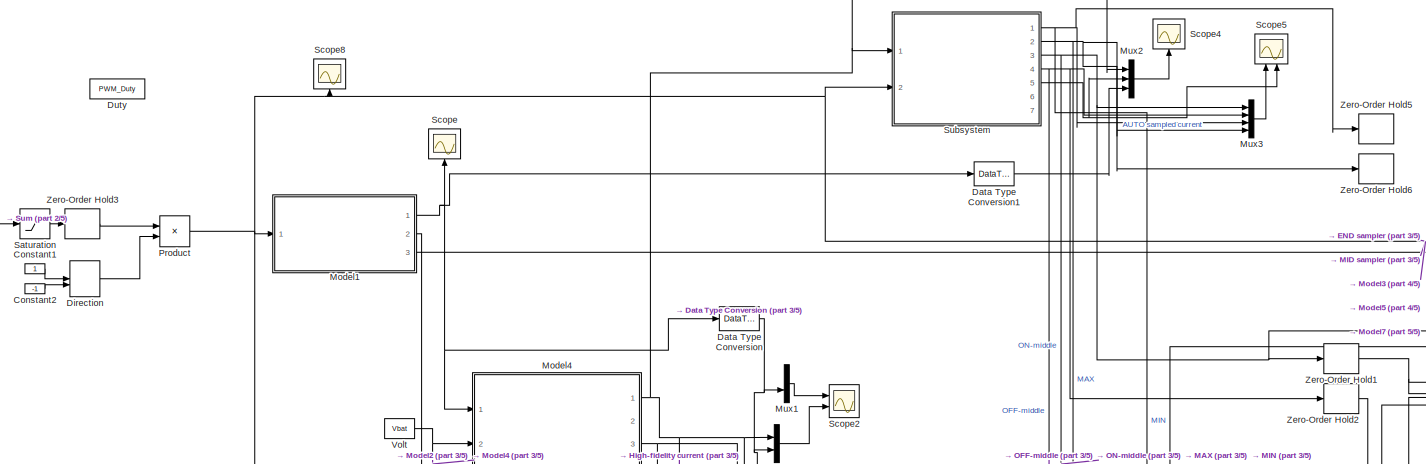
[diagram: root canvas - part 1/5, top center region]
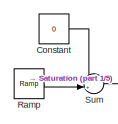
[diagram: root canvas - part 2/5, top left region]
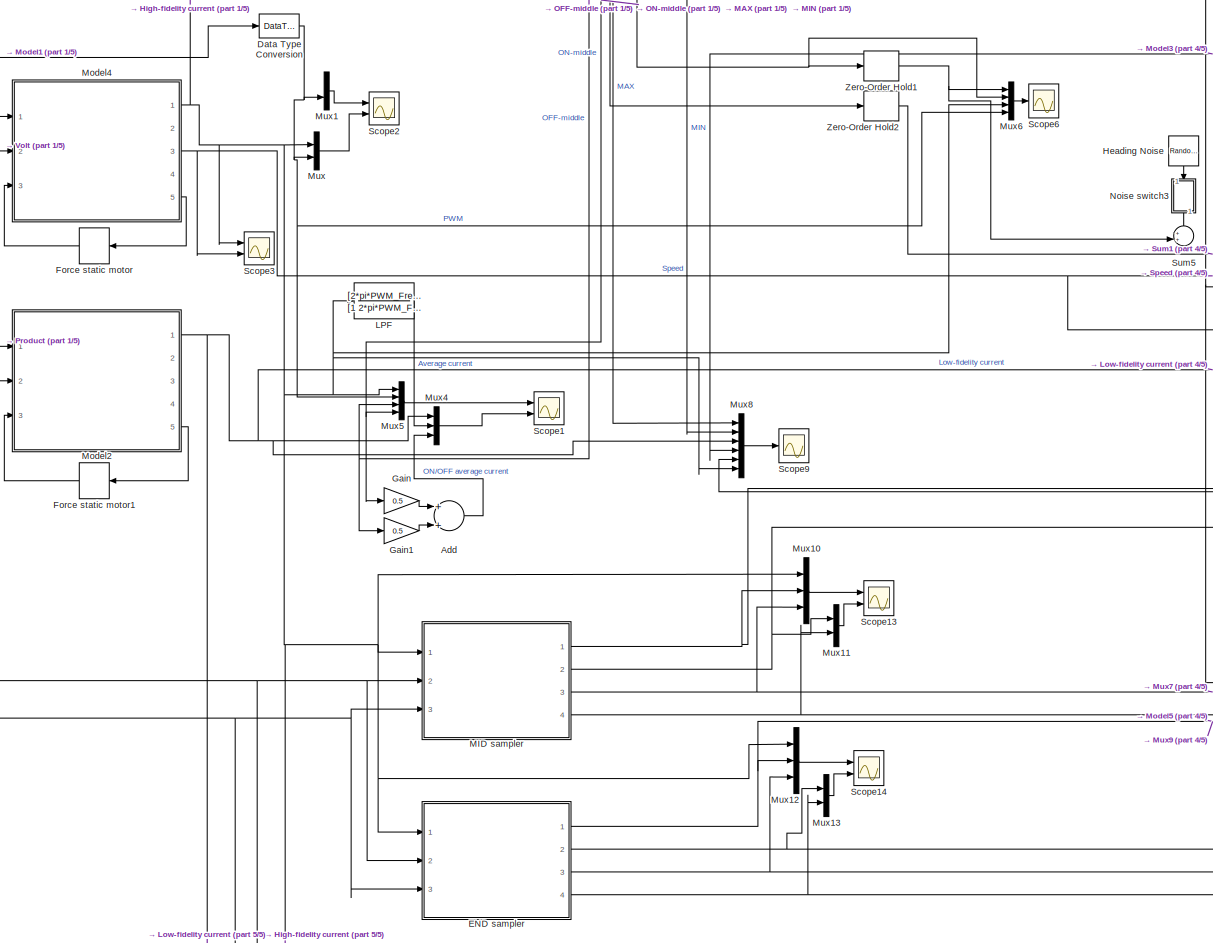
[diagram: root canvas - part 3/5, central region]
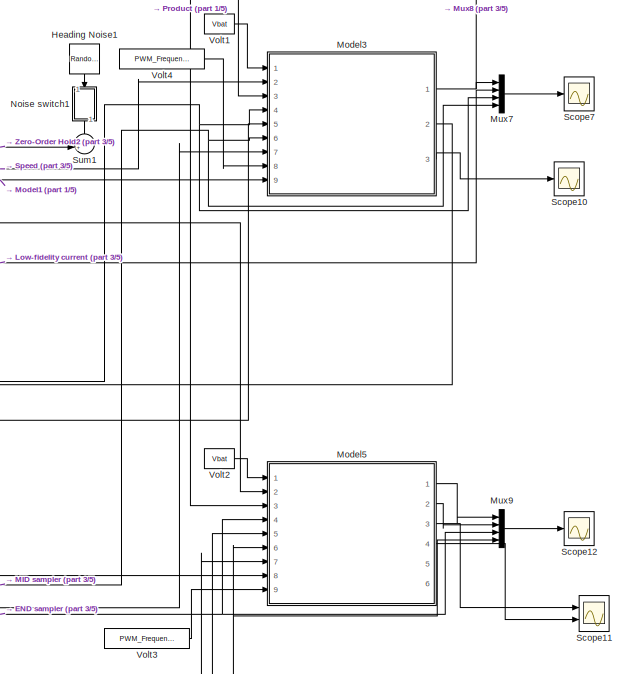
[diagram: root canvas - part 4/5, middle right region]
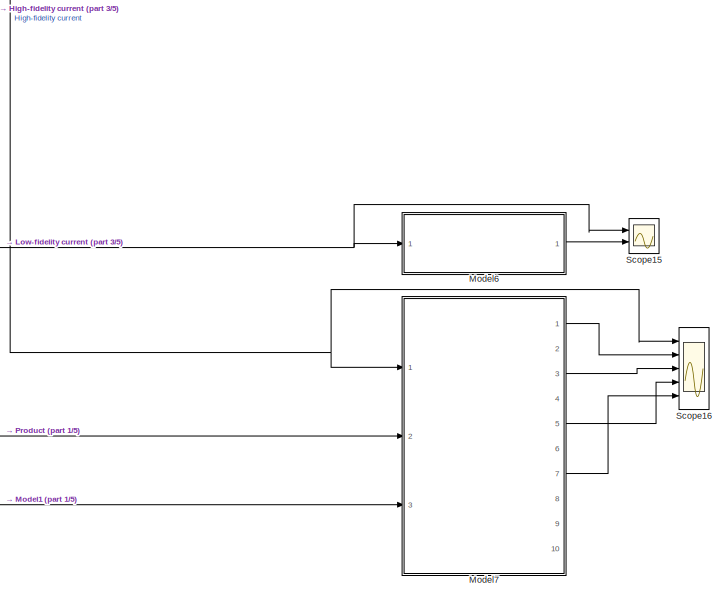
[diagram: root canvas - part 5/5, bottom center region]
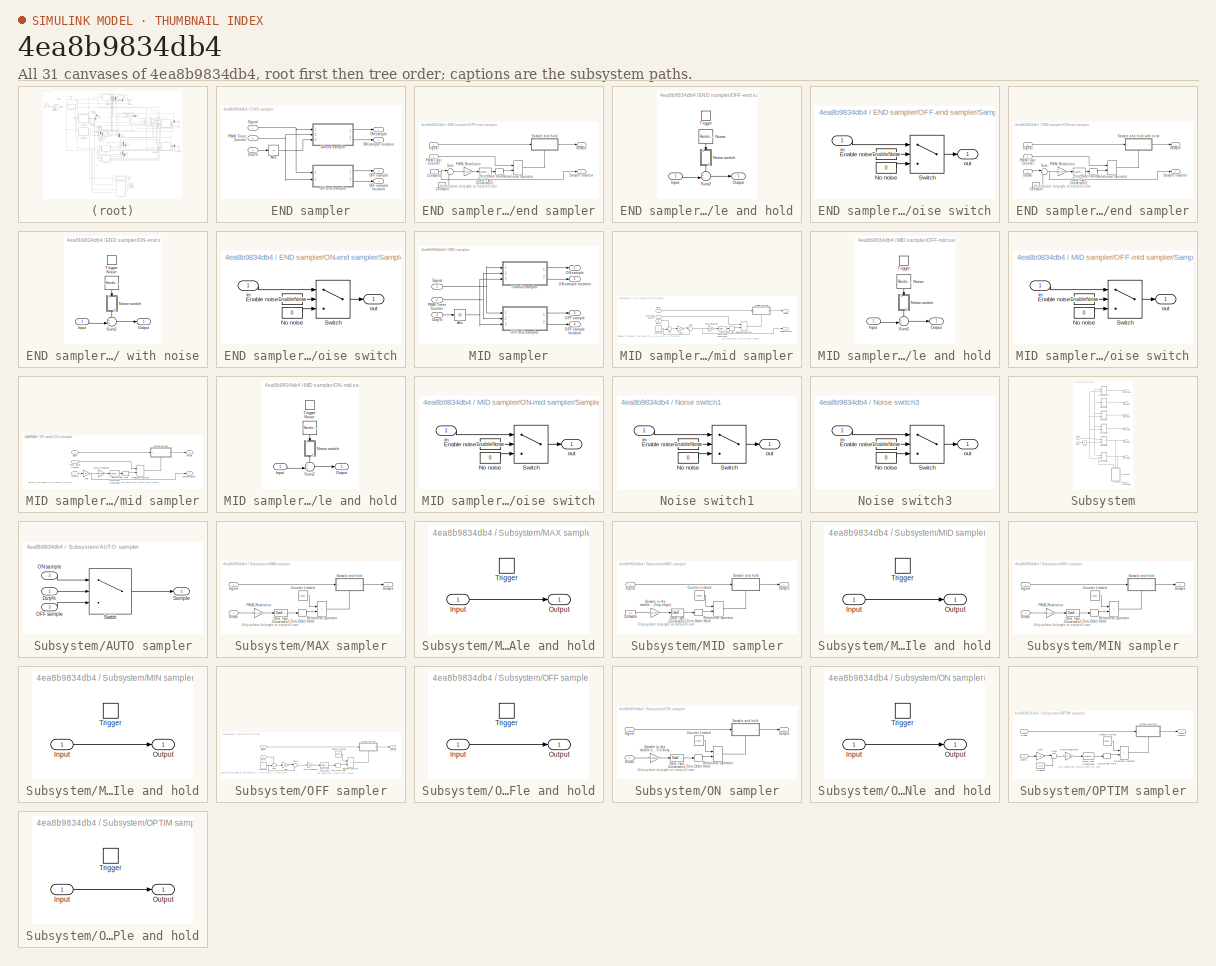
[diagram: thumbnail index - all 31 canvases of the model, root first then tree order]
MODEL slx_4ea8b9834db4
KIND model
CONFIG AbsTol = auto
CONFIG EnableMultiTasking = off
CONFIG FixedStep = auto
CONFIG InitFcn = Parameters_Model\nParameters_Simulation
CONFIG MaxStep = 1/(PWM_Resolution*PWM_Frequency)
CONFIG MinStep = auto
CONFIG PreLoadFcn = modelDir = fileparts(get_param(bdroot, 'FileName'));\naddpath(fullfile(modelDir,'../Parameters'));\naddpath(fullfile(modelDir,'subsystems'));\n\nParameters_Model\nParameters_Simulation
CONFIG RelTol = 1e-3
CONFIG SampleTimeConstraint = Unconstrained
CONFIG Solver = VariableStepAuto
CONFIG SolverName = VariableStepAuto
CONFIG StartTime = 0.0
CONFIG StopTime = 0.5
BLOCK [Sum] Add
  InputSameDT = off
  OutDataTypeStr = Inherit: Inherit via internal rule
  Ports = [2, 1]
  SaturateOnIntegerOverflow = off
BLOCK [Constant] Constant
  Value = 0
BLOCK [Constant] Constant1
BLOCK [Constant] Constant2
  Value = -1
BLOCK [DataTypeConversion] Data Type Conversion
  RndMeth = Round
  SaturateOnIntegerOverflow = off
BLOCK [DataTypeConversion] Data Type Conversion1
  RndMeth = Round
  SaturateOnIntegerOverflow = off
BLOCK [ManualSwitch] Direction
BLOCK [Constant] Duty
  Value = PWM_Duty
BLOCK [SubSystem] END sampler
  Ports = [3, 4]
  RequestExecContextInheritance = off
BLOCK [Abs] END sampler/Abs
  SaturateOnIntegerOverflow = off
BLOCK [Inport] END sampler/Duty%
  IconDisplay = Port number
  OutDataTypeStr = double
  Port = 3
BLOCK [Outport] END sampler/OFF sample
  IconDisplay = Port number
  Port = 3
  VectorParamsAs1DForOutWhenUnconnected = off
BLOCK [Outport] END sampler/OFF sample location
  IconDisplay = Port number
  Port = 4
  VectorParamsAs1DForOutWhenUnconnected = off
BLOCK [SubSystem] END sampler/OFF-end sampler
  Ports = [2, 2]
  RequestExecContextInheritance = off
BLOCK [Constant] END sampler/OFF-end sampler/Constant
  Value = 0.05
BLOCK [Constant] END sampler/OFF-end sampler/Constant1
BLOCK [DataTypeConversion] END sampler/OFF-end sampler/Data Type Conversion1
  RndMeth = Round
  SaturateOnIntegerOverflow = off
BLOCK [Inport] END sampler/OFF-end sampler/PWM Timer Counter
  IconDisplay = Port number
  Port = 2
BLOCK [Gain] END sampler/OFF-end sampler/PWM_Resolution
  Gain = PWM_Resolution
  OutDataTypeStr = Inherit: Inherit via internal rule
  ParamDataTypeStr = Inherit: Inherit via internal rule
  SaturateOnIntegerOverflow = off
BLOCK [RelationalOperator] END sampler/OFF-end sampler/Relational Operator
  InputSameDT = off
  Operator = <
  OutDataTypeStr = boolean
  Ports = [2, 1]
  RndMeth = Simplest
BLOCK [Outport] END sampler/OFF-end sampler/Sample
  IconDisplay = Port number
  VectorParamsAs1DForOutWhenUnconnected = off
BLOCK [SubSystem] END sampler/OFF-end sampler/Sample and hold
  Ports = [1, 1, 0, 1]
  RequestExecContextInheritance = off
BLOCK [Inport] END sampler/OFF-end sampler/Sample and hold/Input
  IconDisplay = Port number
BLOCK [RandomNumber] END sampler/OFF-end sampler/Sample and hold/Noise
  Seed = 35
  Variance = sensor_sigma2_current_sense
BLOCK [SubSystem] END sampler/OFF-end sampler/Sample and hold/Noise switch
  Ports = [1, 1]
  RequestExecContextInheritance = off
BLOCK [Constant] END sampler/OFF-end sampler/Sample and hold/Noise switch/Enable noise
  Value = EnableNoise
BLOCK [Constant] END sampler/OFF-end sampler/Sample and hold/Noise switch/No noise
  Value = 0
BLOCK [Switch] END sampler/OFF-end sampler/Sample and hold/Noise switch/Switch
  Criteria = u2 > Threshold
  InputSameDT = off
  SaturateOnIntegerOverflow = off
BLOCK [Inport] END sampler/OFF-end sampler/Sample and hold/Noise switch/in
  IconDisplay = Port number
BLOCK [Outport] END sampler/OFF-end sampler/Sample and hold/Noise switch/out
  IconDisplay = Port number
  VectorParamsAs1DForOutWhenUnconnected = off
BLOCK [Outport] END sampler/OFF-end sampler/Sample and hold/Output
  IconDisplay = Port number
  VectorParamsAs1DForOutWhenUnconnected = off
BLOCK [Sum] END sampler/OFF-end sampler/Sample and hold/Sum2
  IconShape = round
  InputSameDT = off
  Inputs = ++|
  OutDataTypeStr = Inherit: Inherit via internal rule
  Ports = [2, 1]
  SaturateOnIntegerOverflow = off
BLOCK [TriggerPort] END sampler/OFF-end sampler/Sample and hold/Trigger
  PortDimensions = 1
  Ports = []
  StatesWhenEnabling = held
  VariantControl = Variant
BLOCK [Outport] END sampler/OFF-end sampler/Sample location
  IconDisplay = Port number
  Port = 2
  VectorParamsAs1DForOutWhenUnconnected = off
BLOCK [Inport] END sampler/OFF-end sampler/Signal
  IconDisplay = Port number
BLOCK [Sum] END sampler/OFF-end sampler/Sum
  IconShape = round
  InputSameDT = off
  Inputs = |+-
  OutDataTypeStr = Inherit: Inherit via internal rule
  Ports = [2, 1]
  SaturateOnIntegerOverflow = off
BLOCK [ZeroOrderHold] END sampler/OFF-end sampler/Zero-Order Hold
  SampleTime = 1/PWM_Frequency
BLOCK [Outport] END sampler/ON sample
  IconDisplay = Port number
  VectorParamsAs1DForOutWhenUnconnected = off
BLOCK [Outport] END sampler/ON sample location
  IconDisplay = Port number
  Port = 2
  VectorParamsAs1DForOutWhenUnconnected = off
BLOCK [SubSystem] END sampler/ON-end sampler
  Ports = [3, 2]
  RequestExecContextInheritance = off
BLOCK [Constant] END sampler/ON-end sampler/Constant
  Value = 0
BLOCK [DataTypeConversion] END sampler/ON-end sampler/Data Type Conversion1
  RndMeth = Round
  SaturateOnIntegerOverflow = off
BLOCK [Inport] END sampler/ON-end sampler/Duty%
  IconDisplay = Port number
  OutDataTypeStr = double
  Port = 3
BLOCK [Inport] END sampler/ON-end sampler/PWM Timer Counter
  IconDisplay = Port number
  Port = 2
BLOCK [Gain] END sampler/ON-end sampler/PWM_Resolution
  Gain = PWM_Resolution
  OutDataTypeStr = Inherit: Inherit via internal rule
  ParamDataTypeStr = Inherit: Inherit via internal rule
  SaturateOnIntegerOverflow = off
BLOCK [RelationalOperator] END sampler/ON-end sampler/Relational Operator
  InputSameDT = off
  Operator = <
  OutDataTypeStr = boolean
  Ports = [2, 1]
  RndMeth = Simplest
BLOCK [Outport] END sampler/ON-end sampler/Sample
  IconDisplay = Port number
  VectorParamsAs1DForOutWhenUnconnected = off
BLOCK [SubSystem] END sampler/ON-end sampler/Sample and hold with noise
  Ports = [1, 1, 0, 1]
  RequestExecContextInheritance = off
BLOCK [Inport] END sampler/ON-end sampler/Sample and hold with noise/Input
  IconDisplay = Port number
BLOCK [RandomNumber] END sampler/ON-end sampler/Sample and hold with noise/Noise
  Seed = 55
  Variance = sensor_sigma2_current_sense
BLOCK [SubSystem] END sampler/ON-end sampler/Sample and hold with noise/Noise switch
  Ports = [1, 1]
  RequestExecContextInheritance = off
BLOCK [Constant] END sampler/ON-end sampler/Sample and hold with noise/Noise switch/Enable noise
  Value = EnableNoise
BLOCK [Constant] END sampler/ON-end sampler/Sample and hold with noise/Noise switch/No noise
  Value = 0
BLOCK [Switch] END sampler/ON-end sampler/Sample and hold with noise/Noise switch/Switch
  Criteria = u2 > Threshold
  InputSameDT = off
  SaturateOnIntegerOverflow = off
BLOCK [Inport] END sampler/ON-end sampler/Sample and hold with noise/Noise switch/in
  IconDisplay = Port number
BLOCK [Outport] END sampler/ON-end sampler/Sample and hold with noise/Noise switch/out
  IconDisplay = Port number
  VectorParamsAs1DForOutWhenUnconnected = off
BLOCK [Outport] END sampler/ON-end sampler/Sample and hold with noise/Output
  IconDisplay = Port number
  VectorParamsAs1DForOutWhenUnconnected = off
BLOCK [Sum] END sampler/ON-end sampler/Sample and hold with noise/Sum2
  IconShape = round
  InputSameDT = off
  Inputs = ++|
  OutDataTypeStr = Inherit: Inherit via internal rule
  Ports = [2, 1]
  SaturateOnIntegerOverflow = off
BLOCK [TriggerPort] END sampler/ON-end sampler/Sample and hold with noise/Trigger
  PortDimensions = 1
  Ports = []
  StatesWhenEnabling = held
  TriggerType = falling
  VariantControl = Variant
BLOCK [Outport] END sampler/ON-end sampler/Sample location
  IconDisplay = Port number
  Port = 2
  VectorParamsAs1DForOutWhenUnconnected = off
BLOCK [Inport] END sampler/ON-end sampler/Signal
  IconDisplay = Port number
BLOCK [Sum] END sampler/ON-end sampler/Sum
  IconShape = round
  InputSameDT = off
  Inputs = |+-
  OutDataTypeStr = Inherit: Inherit via internal rule
  Ports = [2, 1]
  SaturateOnIntegerOverflow = off
BLOCK [ZeroOrderHold] END sampler/ON-end sampler/Zero-Order Hold
  SampleTime = 1/PWM_Frequency
BLOCK [Inport] END sampler/PWM Timer Counter
  IconDisplay = Port number
  Port = 2
BLOCK [Inport] END sampler/Signal
  IconDisplay = Port number
BLOCK [ManualSwitch] Force static motor
  CurrentSetting = 0
BLOCK [ManualSwitch] Force static motor1
  CurrentSetting = 0
BLOCK [Gain] Gain
  Gain = 0.5
  OutDataTypeStr = Inherit: Inherit via internal rule
  ParamDataTypeStr = Inherit: Inherit via internal rule
  SaturateOnIntegerOverflow = off
BLOCK [Gain] Gain1
  Gain = 0.5
  OutDataTypeStr = Inherit: Inherit via internal rule
  ParamDataTypeStr = Inherit: Inherit via internal rule
  SaturateOnIntegerOverflow = off
BLOCK [RandomNumber] Heading Noise
  SampleTime = 1/PWM_Frequency
  Seed = 19
  Variance = (0.02/3)^2
BLOCK [RandomNumber] Heading Noise1
  SampleTime = 1/PWM_Frequency
  Seed = 55
  Variance = (0.02/3)^2
BLOCK [TransferFcn] LPF
  Denominator = [1 2*pi*PWM_Frequency/100]
  Numerator = [2*pi*PWM_Frequency/100]
BLOCK [SubSystem] MID sampler
  Ports = [3, 4]
  RequestExecContextInheritance = off
BLOCK [Abs] MID sampler/Abs
  SaturateOnIntegerOverflow = off
BLOCK [Inport] MID sampler/Duty%
  IconDisplay = Port number
  OutDataTypeStr = double
  Port = 3
BLOCK [Outport] MID sampler/OFF sample
  IconDisplay = Port number
  Port = 3
  VectorParamsAs1DForOutWhenUnconnected = off
BLOCK [Outport] MID sampler/OFF sample location
  IconDisplay = Port number
  Port = 4
  VectorParamsAs1DForOutWhenUnconnected = off
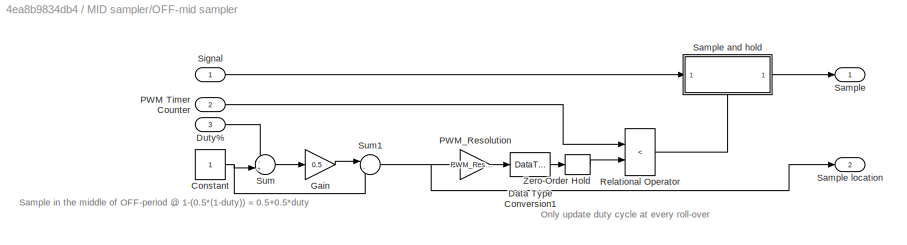
BLOCK [SubSystem] MID sampler/OFF-mid sampler
  Ports = [3, 2]
  RequestExecContextInheritance = off
BLOCK [Constant] MID sampler/OFF-mid sampler/Constant
BLOCK [DataTypeConversion] MID sampler/OFF-mid sampler/Data Type Conversion1
  RndMeth = Round
  SaturateOnIntegerOverflow = off
BLOCK [Inport] MID sampler/OFF-mid sampler/Duty%
  IconDisplay = Port number
  OutDataTypeStr = double
  Port = 3
BLOCK [Gain] MID sampler/OFF-mid sampler/Gain
  Gain = 0.5
  OutDataTypeStr = Inherit: Inherit via internal rule
  ParamDataTypeStr = Inherit: Inherit via internal rule
  SaturateOnIntegerOverflow = off
BLOCK [Inport] MID sampler/OFF-mid sampler/PWM Timer Counter
  IconDisplay = Port number
  Port = 2
BLOCK [Gain] MID sampler/OFF-mid sampler/PWM_Resolution
  Gain = PWM_Resolution
  OutDataTypeStr = Inherit: Inherit via internal rule
  ParamDataTypeStr = Inherit: Inherit via internal rule
  SaturateOnIntegerOverflow = off
BLOCK [RelationalOperator] MID sampler/OFF-mid sampler/Relational Operator
  InputSameDT = off
  Operator = <
  OutDataTypeStr = boolean
  Ports = [2, 1]
  RndMeth = Simplest
BLOCK [Outport] MID sampler/OFF-mid sampler/Sample
  IconDisplay = Port number
  VectorParamsAs1DForOutWhenUnconnected = off
BLOCK [SubSystem] MID sampler/OFF-mid sampler/Sample and hold
  Ports = [1, 1, 0, 1]
  RequestExecContextInheritance = off
BLOCK [Inport] MID sampler/OFF-mid sampler/Sample and hold/Input
  IconDisplay = Port number
BLOCK [RandomNumber] MID sampler/OFF-mid sampler/Sample and hold/Noise
  Seed = 35
  Variance = sensor_sigma2_current_sense
BLOCK [SubSystem] MID sampler/OFF-mid sampler/Sample and hold/Noise switch
  Ports = [1, 1]
  RequestExecContextInheritance = off
BLOCK [Constant] MID sampler/OFF-mid sampler/Sample and hold/Noise switch/Enable noise
  Value = EnableNoise
BLOCK [Constant] MID sampler/OFF-mid sampler/Sample and hold/Noise switch/No noise
  Value = 0
BLOCK [Switch] MID sampler/OFF-mid sampler/Sample and hold/Noise switch/Switch
  Criteria = u2 > Threshold
  InputSameDT = off
  SaturateOnIntegerOverflow = off
BLOCK [Inport] MID sampler/OFF-mid sampler/Sample and hold/Noise switch/in
  IconDisplay = Port number
BLOCK [Outport] MID sampler/OFF-mid sampler/Sample and hold/Noise switch/out
  IconDisplay = Port number
  VectorParamsAs1DForOutWhenUnconnected = off
BLOCK [Outport] MID sampler/OFF-mid sampler/Sample and hold/Output
  IconDisplay = Port number
  VectorParamsAs1DForOutWhenUnconnected = off
BLOCK [Sum] MID sampler/OFF-mid sampler/Sample and hold/Sum2
  IconShape = round
  InputSameDT = off
  Inputs = ++|
  OutDataTypeStr = Inherit: Inherit via internal rule
  Ports = [2, 1]
  SaturateOnIntegerOverflow = off
BLOCK [TriggerPort] MID sampler/OFF-mid sampler/Sample and hold/Trigger
  PortDimensions = 1
  Ports = []
  StatesWhenEnabling = held
  TriggerType = falling
  VariantControl = Variant
BLOCK [Outport] MID sampler/OFF-mid sampler/Sample location
  IconDisplay = Port number
  Port = 2
  VectorParamsAs1DForOutWhenUnconnected = off
BLOCK [Inport] MID sampler/OFF-mid sampler/Signal
  IconDisplay = Port number
BLOCK [Sum] MID sampler/OFF-mid sampler/Sum
  IconShape = round
  InputSameDT = off
  Inputs = -+|
  OutDataTypeStr = Inherit: Inherit via internal rule
  Ports = [2, 1]
  SaturateOnIntegerOverflow = off
BLOCK [Sum] MID sampler/OFF-mid sampler/Sum1
  IconShape = round
  InputSameDT = off
  Inputs = |-+
  OutDataTypeStr = Inherit: Inherit via internal rule
  Ports = [2, 1]
  SaturateOnIntegerOverflow = off
BLOCK [ZeroOrderHold] MID sampler/OFF-mid sampler/Zero-Order Hold
  SampleTime = 1/PWM_Frequency
BLOCK [Outport] MID sampler/ON sample
  IconDisplay = Port number
  VectorParamsAs1DForOutWhenUnconnected = off
BLOCK [Outport] MID sampler/ON sample location
  IconDisplay = Port number
  Port = 2
  VectorParamsAs1DForOutWhenUnconnected = off
BLOCK [SubSystem] MID sampler/ON-mid sampler
  Ports = [3, 2]
  RequestExecContextInheritance = off
BLOCK [DataTypeConversion] MID sampler/ON-mid sampler/Data Type Conversion1
  RndMeth = Round
  SaturateOnIntegerOverflow = off
BLOCK [Inport] MID sampler/ON-mid sampler/Duty%
  IconDisplay = Port number
  OutDataTypeStr = double
  Port = 3
BLOCK [Gain] MID sampler/ON-mid sampler/Gain
  Gain = 0.5
  OutDataTypeStr = Inherit: Inherit via internal rule
  ParamDataTypeStr = Inherit: Inherit via internal rule
  SaturateOnIntegerOverflow = off
BLOCK [Inport] MID sampler/ON-mid sampler/PWM Timer Counter
  IconDisplay = Port number
  Port = 2
BLOCK [Gain] MID sampler/ON-mid sampler/PWM_Resolution
  Gain = PWM_Resolution
  OutDataTypeStr = Inherit: Inherit via internal rule
  ParamDataTypeStr = Inherit: Inherit via internal rule
  SaturateOnIntegerOverflow = off
BLOCK [RelationalOperator] MID sampler/ON-mid sampler/Relational Operator
  InputSameDT = off
  Operator = <
  OutDataTypeStr = boolean
  Ports = [2, 1]
  RndMeth = Simplest
BLOCK [Outport] MID sampler/ON-mid sampler/Sample
  IconDisplay = Port number
  VectorParamsAs1DForOutWhenUnconnected = off
BLOCK [SubSystem] MID sampler/ON-mid sampler/Sample and hold
  Ports = [1, 1, 0, 1]
  RequestExecContextInheritance = off
BLOCK [Inport] MID sampler/ON-mid sampler/Sample and hold/Input
  IconDisplay = Port number
BLOCK [RandomNumber] MID sampler/ON-mid sampler/Sample and hold/Noise
  Seed = 55
  Variance = sensor_sigma2_current_sense
BLOCK [SubSystem] MID sampler/ON-mid sampler/Sample and hold/Noise switch
  Ports = [1, 1]
  RequestExecContextInheritance = off
BLOCK [Constant] MID sampler/ON-mid sampler/Sample and hold/Noise switch/Enable noise
  Value = EnableNoise
BLOCK [Constant] MID sampler/ON-mid sampler/Sample and hold/Noise switch/No noise
  Value = 0
BLOCK [Switch] MID sampler/ON-mid sampler/Sample and hold/Noise switch/Switch
  Criteria = u2 > Threshold
  InputSameDT = off
  SaturateOnIntegerOverflow = off
BLOCK [Inport] MID sampler/ON-mid sampler/Sample and hold/Noise switch/in
  IconDisplay = Port number
BLOCK [Outport] MID sampler/ON-mid sampler/Sample and hold/Noise switch/out
  IconDisplay = Port number
  VectorParamsAs1DForOutWhenUnconnected = off
BLOCK [Outport] MID sampler/ON-mid sampler/Sample and hold/Output
  IconDisplay = Port number
  VectorParamsAs1DForOutWhenUnconnected = off
BLOCK [Sum] MID sampler/ON-mid sampler/Sample and hold/Sum2
  IconShape = round
  InputSameDT = off
  Inputs = ++|
  OutDataTypeStr = Inherit: Inherit via internal rule
  Ports = [2, 1]
  SaturateOnIntegerOverflow = off
BLOCK [TriggerPort] MID sampler/ON-mid sampler/Sample and hold/Trigger
  PortDimensions = 1
  Ports = []
  StatesWhenEnabling = held
  TriggerType = falling
  VariantControl = Variant
BLOCK [Outport] MID sampler/ON-mid sampler/Sample location
  IconDisplay = Port number
  Port = 2
  VectorParamsAs1DForOutWhenUnconnected = off
BLOCK [Inport] MID sampler/ON-mid sampler/Signal
  IconDisplay = Port number
BLOCK [ZeroOrderHold] MID sampler/ON-mid sampler/Zero-Order Hold
  SampleTime = 1/PWM_Frequency
BLOCK [Inport] MID sampler/PWM Timer Counter
  IconDisplay = Port number
  Port = 2
BLOCK [Inport] MID sampler/Signal
  IconDisplay = Port number
BLOCK [ModelReference] Model1
  ModelNameDialog = PWM_Advanced
  ModelReferenceVersion = 1.31
  Ports = [1, 3]
BLOCK [ModelReference] Model2
  ModelNameDialog = DC_Motor_BrakeMode_Ideal
  ModelReferenceVersion = 1.26
  Ports = [3, 5]
BLOCK [ModelReference] Model3
  ModelNameDialog = MotorCurrentEKF_
  ModelReferenceVersion = 1.43
  Ports = [9, 3]
BLOCK [ModelReference] Model4
  ModelNameDialog = DC_Motor_BrakeMode
  ModelReferenceVersion = 1.42
  Ports = [3, 5]
BLOCK [ModelReference] Model5
  ModelNameDialog = RL_EKF_
  ModelReferenceVersion = 1.68
  Ports = [9, 6]
BLOCK [ModelReference] Model6
  Commented = on
  ModelNameDialog = Current_Sensor_Ideal
  ModelReferenceVersion = 1.16
  Ports = [1, 1]
BLOCK [ModelReference] Model7
  Commented = on
  ModelNameDialog = Current_Sensor_PWM_Synchronized
  ModelReferenceVersion = 1.24
  Ports = [3, 10]
BLOCK [Mux] Mux
  DisplayOption = bar
  Inputs = 2
  Ports = [2, 1]
BLOCK [Mux] Mux1
  DisplayOption = bar
  Inputs = 2
  Ports = [2, 1]
BLOCK [Mux] Mux10
  DisplayOption = bar
  Inputs = 3
  Ports = [3, 1]
BLOCK [Mux] Mux11
  DisplayOption = bar
  Inputs = 2
  Ports = [2, 1]
BLOCK [Mux] Mux12
  DisplayOption = bar
  Inputs = 3
  Ports = [3, 1]
BLOCK [Mux] Mux13
  DisplayOption = bar
  Inputs = 2
  Ports = [2, 1]
BLOCK [Mux] Mux2
  DisplayOption = bar
  Inputs = 3
  Ports = [3, 1]
BLOCK [Mux] Mux3
  DisplayOption = bar
  Ports = [4, 1]
BLOCK [Mux] Mux4
  DisplayOption = bar
  Inputs = 3
  Ports = [3, 1]
BLOCK [Mux] Mux5
  DisplayOption = bar
  Ports = [4, 1]
BLOCK [Mux] Mux6
  DisplayOption = bar
  Ports = [4, 1]
BLOCK [Mux] Mux7
  DisplayOption = bar
  Ports = [4, 1]
BLOCK [Mux] Mux8
  DisplayOption = bar
  Inputs = 6
  Ports = [6, 1]
BLOCK [Mux] Mux9
  DisplayOption = bar
  Ports = [4, 1]
BLOCK [SubSystem] Noise switch1
  Ports = [1, 1]
  RequestExecContextInheritance = off
BLOCK [Constant] Noise switch1/Enable noise
  Value = EnableNoise
BLOCK [Constant] Noise switch1/No noise
  Value = 0
BLOCK [Switch] Noise switch1/Switch
  Criteria = u2 > Threshold
  InputSameDT = off
  SaturateOnIntegerOverflow = off
BLOCK [Inport] Noise switch1/in
  IconDisplay = Port number
BLOCK [Outport] Noise switch1/out
  IconDisplay = Port number
  VectorParamsAs1DForOutWhenUnconnected = off
BLOCK [SubSystem] Noise switch3
  Ports = [1, 1]
  RequestExecContextInheritance = off
BLOCK [Constant] Noise switch3/Enable noise
  Value = EnableNoise
BLOCK [Constant] Noise switch3/No noise
  Value = 0
BLOCK [Switch] Noise switch3/Switch
  Criteria = u2 > Threshold
  InputSameDT = off
  SaturateOnIntegerOverflow = off
BLOCK [Inport] Noise switch3/in
  IconDisplay = Port number
BLOCK [Outport] Noise switch3/out
  IconDisplay = Port number
  VectorParamsAs1DForOutWhenUnconnected = off
BLOCK [Product] Product
  InputSameDT = off
  OutDataTypeStr = Inherit: Inherit via internal rule
  Ports = [2, 1]
  RndMeth = Floor
  SaturateOnIntegerOverflow = off
BLOCK [Reference] Ramp  REF=simulink/Sources/Ramp
  Ports = [0, 1]
  SourceBlock = simulink/Sources/Ramp
  SourceProductBaseCode = SL
  SourceProductName = Simulink
  SourceType = Ramp
BLOCK [Saturate] Saturation
  InputPortMap = u0
  LowerLimit = 0
  Ports = [1, 1]
  UpperLimit = 0.8
BLOCK [Scope] Scope
  Floating = off
  NumInputPorts = 1
  Ports = [1]
  ScopeSpecificationString = Simulink.scopes.TimeScopeBlockCfg('CurrentConfiguration', extmgr.ConfigurationSet(extmgr.Configuration('Core','General UI',true),extmgr.Configuration('Core','Source UI',true),extmgr.Configuration('Sources','WiredSimulink',true),extmgr.Configuration('Visuals','Time Domain',true,'SerializedDisplays',{struct('MinYLimReal','-0.125','MaxYLimReal','1.125','YLabelReal','','MinYLimMag','0.00000','MaxYLimM...<+1414ch>
BLOCK [Scope] Scope1
  Floating = off
  NumInputPorts = 2
  Ports = [2]
  ScopeSpecificationString = Simulink.scopes.TimeScopeBlockCfg('CurrentConfiguration', extmgr.ConfigurationSet(extmgr.Configuration('Core','General UI',true),extmgr.Configuration('Core','Source UI',true),extmgr.Configuration('Sources','WiredSimulink',true,'DataLoggingVariableName','ScopeData1'),extmgr.Configuration('Visuals','Time Domain',true,'SerializedDisplays',{struct('MinYLimReal','-0.14138','MaxYLimReal','1.19689','YLab...<+2094ch>
BLOCK [Scope] Scope10
  Floating = off
  NumInputPorts = 1
  Ports = [1]
  ScopeSpecificationString = Simulink.scopes.TimeScopeBlockCfg('CurrentConfiguration', extmgr.ConfigurationSet(extmgr.Configuration('Core','General UI',true),extmgr.Configuration('Core','Source UI',true),extmgr.Configuration('Sources','WiredSimulink',true,'DataLoggingVariableName','ScopeData4'),extmgr.Configuration('Visuals','Time Domain',true,'SerializedDisplays',{struct('MinYLimReal','2.39942','MaxYLimReal','2.42673','YLabe...<+1627ch>
BLOCK [Scope] Scope11
  Floating = off
  NumInputPorts = 2
  Ports = [2]
  ScopeSpecificationString = Simulink.scopes.TimeScopeBlockCfg('CurrentConfiguration', extmgr.ConfigurationSet(extmgr.Configuration('Core','General UI',true),extmgr.Configuration('Core','Source UI',true),extmgr.Configuration('Sources','WiredSimulink',true,'DataLoggingVariableName','ScopeData5'),extmgr.Configuration('Visuals','Time Domain',true,'SerializedDisplays',{struct('MinYLimReal','1.56819','MaxYLimReal','2.17529','YLabe...<+2223ch>
BLOCK [Scope] Scope12
  Floating = off
  NumInputPorts = 1
  Ports = [1]
  ScopeSpecificationString = Simulink.scopes.TimeScopeBlockCfg('CurrentConfiguration', extmgr.ConfigurationSet(extmgr.Configuration('Core','General UI',true),extmgr.Configuration('Core','Source UI',true),extmgr.Configuration('Sources','WiredSimulink',true,'DataLoggingVariableName','ScopeData6'),extmgr.Configuration('Visuals','Time Domain',true,'SerializedDisplays',{struct('MinYLimReal','-1.23073','MaxYLimReal','5.01624','YLab...<+1677ch>
BLOCK [Scope] Scope13
  Floating = off
  NumInputPorts = 2
  Ports = [2]
  ScopeSpecificationString = Simulink.scopes.TimeScopeBlockCfg('CurrentConfiguration', extmgr.ConfigurationSet(extmgr.Configuration('Core','General UI',true),extmgr.Configuration('Core','Source UI',true),extmgr.Configuration('Sources','WiredSimulink',true,'DataLoggingVariableName','ScopeData7'),extmgr.Configuration('Visuals','Time Domain',true,'SerializedDisplays',{struct('MinYLimReal','-0.10865','MaxYLimReal','0.76328','YLab...<+2400ch>
BLOCK [Scope] Scope14
  Floating = off
  NumInputPorts = 2
  Ports = [2]
  ScopeSpecificationString = Simulink.scopes.TimeScopeBlockCfg('CurrentConfiguration', extmgr.ConfigurationSet(extmgr.Configuration('Core','General UI',true),extmgr.Configuration('Core','Source UI',true),extmgr.Configuration('Sources','WiredSimulink',true,'DataLoggingVariableName','ScopeData1'),extmgr.Configuration('Visuals','Time Domain',true,'SerializedDisplays',{struct('MinYLimReal','-0.07011','MaxYLimReal','0.63096','YLab...<+2400ch>
BLOCK [Scope] Scope15
  Floating = off
  NumInputPorts = 2
  Ports = [2]
  ScopeSpecificationString = Simulink.scopes.TimeScopeBlockCfg('CurrentConfiguration', extmgr.ConfigurationSet(extmgr.Configuration('Core','General UI',true),extmgr.Configuration('Core','Source UI',true),extmgr.Configuration('Sources','WiredSimulink',true,'DataLoggingVariableName','ScopeData1'),extmgr.Configuration('Visuals','Time Domain',true,'SerializedDisplays',{struct('MinYLimReal','-0.07391','MaxYLimReal','0.66519','YLab...<+1670ch>
BLOCK [Scope] Scope16
  Floating = off
  NumInputPorts = 5
  Ports = [5]
  ScopeSpecificationString = Simulink.scopes.TimeScopeBlockCfg('CurrentConfiguration', extmgr.ConfigurationSet(extmgr.Configuration('Core','General UI',true),extmgr.Configuration('Core','Source UI',true),extmgr.Configuration('Sources','WiredSimulink',true,'DataLoggingVariableName','ScopeData2'),extmgr.Configuration('Visuals','Time Domain',true,'SerializedDisplays',{struct('MinYLimReal','-0.08284','MaxYLimReal','0.66618','YLab...<+1706ch>
BLOCK [Scope] Scope2
  Floating = off
  NumInputPorts = 2
  Ports = [2]
  ScopeSpecificationString = Simulink.scopes.TimeScopeBlockCfg('CurrentConfiguration', extmgr.ConfigurationSet(extmgr.Configuration('Core','General UI',true),extmgr.Configuration('Core','Source UI',true),extmgr.Configuration('Sources','WiredSimulink',true,'DataLoggingVariableName','ScopeData1'),extmgr.Configuration('Visuals','Time Domain',true,'SerializedDisplays',{struct('MinYLimReal','-0.125','MaxYLimReal','1.125','YLabelRe...<+2494ch>
BLOCK [Scope] Scope3
  Floating = off
  NumInputPorts = 2
  Ports = [2]
  ScopeSpecificationString = Simulink.scopes.TimeScopeBlockCfg('CurrentConfiguration', extmgr.ConfigurationSet(extmgr.Configuration('Core','General UI',true),extmgr.Configuration('Core','Source UI',true),extmgr.Configuration('Sources','WiredSimulink',true,'DataLoggingVariableName','ScopeData2'),extmgr.Configuration('Visuals','Time Domain',true,'SerializedDisplays',{struct('MinYLimReal','-0.14138','MaxYLimReal','1.19689','YLab...<+2148ch>
BLOCK [Scope] Scope4
  Floating = off
  NumInputPorts = 1
  Ports = [1]
  ScopeSpecificationString = Simulink.scopes.TimeScopeBlockCfg('CurrentConfiguration', extmgr.ConfigurationSet(extmgr.Configuration('Core','General UI',true),extmgr.Configuration('Core','Source UI',true),extmgr.Configuration('Sources','WiredSimulink',true,'DataLoggingVariableName','ScopeData1'),extmgr.Configuration('Visuals','Time Domain',true,'SerializedDisplays',{struct('MinYLimReal','-0.04421','MaxYLimReal','1.03492','YLab...<+1501ch>
BLOCK [Scope] Scope5
  Floating = off
  NumInputPorts = 2
  Ports = [2]
  ScopeSpecificationString = Simulink.scopes.TimeScopeBlockCfg('CurrentConfiguration', extmgr.ConfigurationSet(extmgr.Configuration('Core','General UI',true),extmgr.Configuration('Core','Source UI',true),extmgr.Configuration('Sources','WiredSimulink',true,'DataLoggingVariableName','ScopeData2'),extmgr.Configuration('Visuals','Time Domain',true,'SerializedDisplays',{struct('MinYLimReal','-0.40006','MaxYLimReal','3.6005','YLabe...<+2118ch>
BLOCK [Scope] Scope6
  Floating = off
  NumInputPorts = 1
  Ports = [1]
  ScopeSpecificationString = Simulink.scopes.TimeScopeBlockCfg('CurrentConfiguration', extmgr.ConfigurationSet(extmgr.Configuration('Core','General UI',true),extmgr.Configuration('Core','Source UI',true),extmgr.Configuration('Sources','WiredSimulink',true,'DataLoggingVariableName','ScopeData1'),extmgr.Configuration('Visuals','Time Domain',true,'SerializedDisplays',{struct('MinYLimReal','-0.45378','MaxYLimReal','4.08399','YLab...<+1679ch>
BLOCK [Scope] Scope7
  Floating = off
  NumInputPorts = 1
  Ports = [1]
  ScopeSpecificationString = Simulink.scopes.TimeScopeBlockCfg('CurrentConfiguration', extmgr.ConfigurationSet(extmgr.Configuration('Core','General UI',true),extmgr.Configuration('Core','Source UI',true),extmgr.Configuration('Sources','WiredSimulink',true,'DataLoggingVariableName','ScopeData1'),extmgr.Configuration('Visuals','Time Domain',true,'SerializedDisplays',{struct('MinYLimReal','0.44112','MaxYLimReal','0.44477','YLabe...<+1661ch>
BLOCK [Scope] Scope8
  Floating = off
  NumInputPorts = 1
  Ports = [1]
  ScopeSpecificationString = Simulink.scopes.TimeScopeBlockCfg('CurrentConfiguration', extmgr.ConfigurationSet(extmgr.Configuration('Core','General UI',true),extmgr.Configuration('Core','Source UI',true),extmgr.Configuration('Sources','WiredSimulink',true,'DataLoggingVariableName','ScopeData2'),extmgr.Configuration('Visuals','Time Domain',true,'SerializedDisplays',{struct('MinYLimReal','0.0125','MaxYLimReal','0.8875','YLabelR...<+1455ch>
BLOCK [Scope] Scope9
  Floating = off
  NumInputPorts = 1
  Ports = [1]
  ScopeSpecificationString = Simulink.scopes.TimeScopeBlockCfg('CurrentConfiguration', extmgr.ConfigurationSet(extmgr.Configuration('Core','General UI',true),extmgr.Configuration('Core','Source UI',true),extmgr.Configuration('Sources','WiredSimulink',true,'DataLoggingVariableName','ScopeData3'),extmgr.Configuration('Visuals','Time Domain',true,'SerializedDisplays',{struct('MinYLimReal','-0.57483','MaxYLimReal','-0.39153','YLa...<+1725ch>
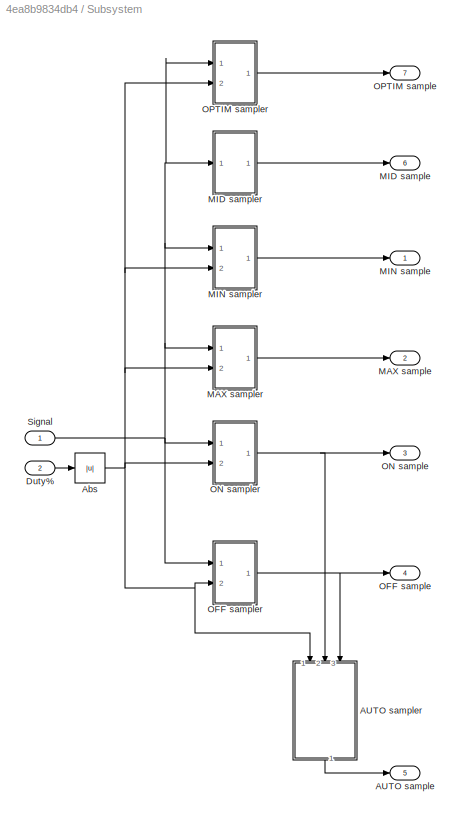
BLOCK [SubSystem] Subsystem
  Ports = [2, 7]
  RequestExecContextInheritance = off
BLOCK [Outport] Subsystem/AUTO sample
  IconDisplay = Port number
  Port = 5
  VectorParamsAs1DForOutWhenUnconnected = off
BLOCK [SubSystem] Subsystem/AUTO sampler
  Ports = [3, 1]
  RequestExecContextInheritance = off
BLOCK [Inport] Subsystem/AUTO sampler/Duty%
  IconDisplay = Port number
  OutDataTypeStr = double
BLOCK [Inport] Subsystem/AUTO sampler/OFF sample
  IconDisplay = Port number
  Port = 3
BLOCK [Inport] Subsystem/AUTO sampler/ON sample
  IconDisplay = Port number
  Port = 2
BLOCK [Outport] Subsystem/AUTO sampler/Sample
  IconDisplay = Port number
  VectorParamsAs1DForOutWhenUnconnected = off
BLOCK [Switch] Subsystem/AUTO sampler/Switch
  InputSameDT = off
  SaturateOnIntegerOverflow = off
  Threshold = 0.5
BLOCK [Abs] Subsystem/Abs
  SaturateOnIntegerOverflow = off
BLOCK [Inport] Subsystem/Duty%
  IconDisplay = Port number
  OutDataTypeStr = double
  Port = 2
BLOCK [Outport] Subsystem/MAX sample
  IconDisplay = Port number
  Port = 2
  VectorParamsAs1DForOutWhenUnconnected = off
BLOCK [SubSystem] Subsystem/MAX sampler
  Ports = [2, 1]
  RequestExecContextInheritance = off
BLOCK [Reference] Subsystem/MAX sampler/Counter Limited  REF=simulink/Sources/Counter
Limited
  Ports = [0, 1]
  SourceBlock = simulink/Sources/Counter\nLimited
  SourceProductBaseCode = SL
  SourceProductName = Simulink
  SourceType = Counter Limited
BLOCK [DataTypeConversion] Subsystem/MAX sampler/Data Type Conversion1
  RndMeth = Round
  SaturateOnIntegerOverflow = off
BLOCK [Inport] Subsystem/MAX sampler/Duty%
  IconDisplay = Port number
  OutDataTypeStr = double
  Port = 2
BLOCK [Gain] Subsystem/MAX sampler/PWM_Resolution
  Gain = PWM_Resolution
  OutDataTypeStr = Inherit: Inherit via internal rule
  ParamDataTypeStr = Inherit: Inherit via internal rule
  SaturateOnIntegerOverflow = off
BLOCK [RelationalOperator] Subsystem/MAX sampler/Relational Operator
  InputSameDT = off
  Operator = <
  OutDataTypeStr = boolean
  Ports = [2, 1]
  RndMeth = Simplest
BLOCK [Outport] Subsystem/MAX sampler/Sample
  IconDisplay = Port number
  VectorParamsAs1DForOutWhenUnconnected = off
BLOCK [SubSystem] Subsystem/MAX sampler/Sample and hold
  Ports = [1, 1, 0, 1]
  RequestExecContextInheritance = off
BLOCK [Inport] Subsystem/MAX sampler/Sample and hold/Input
  IconDisplay = Port number
BLOCK [Outport] Subsystem/MAX sampler/Sample and hold/Output
  IconDisplay = Port number
  VectorParamsAs1DForOutWhenUnconnected = off
BLOCK [TriggerPort] Subsystem/MAX sampler/Sample and hold/Trigger
  PortDimensions = 1
  Ports = []
  StatesWhenEnabling = held
  TriggerType = falling
  VariantControl = Variant
BLOCK [Inport] Subsystem/MAX sampler/Signal
  IconDisplay = Port number
BLOCK [ZeroOrderHold] Subsystem/MAX sampler/Zero-Order Hold
  SampleTime = 1/PWM_Frequency
BLOCK [Outport] Subsystem/MID sample
  IconDisplay = Port number
  Port = 6
  VectorParamsAs1DForOutWhenUnconnected = off
BLOCK [SubSystem] Subsystem/MID sampler
  Ports = [1, 1]
  RequestExecContextInheritance = off
BLOCK [Constant] Subsystem/MID sampler/Constant
  Value = 0.5
BLOCK [Reference] Subsystem/MID sampler/Counter Limited  REF=simulink/Sources/Counter
Limited
  Ports = [0, 1]
  SourceBlock = simulink/Sources/Counter\nLimited
  SourceProductBaseCode = SL
  SourceProductName = Simulink
  SourceType = Counter Limited
BLOCK [DataTypeConversion] Subsystem/MID sampler/Data Type Conversion1
  RndMeth = Round
  SaturateOnIntegerOverflow = off
BLOCK [RelationalOperator] Subsystem/MID sampler/Relational Operator
  InputSameDT = off
  Operator = <
  OutDataTypeStr = boolean
  Ports = [2, 1]
  RndMeth = Simplest
BLOCK [Outport] Subsystem/MID sampler/Sample
  IconDisplay = Port number
  VectorParamsAs1DForOutWhenUnconnected = off
BLOCK [SubSystem] Subsystem/MID sampler/Sample and hold
  Ports = [1, 1, 0, 1]
  RequestExecContextInheritance = off
BLOCK [Inport] Subsystem/MID sampler/Sample and hold/Input
  IconDisplay = Port number
BLOCK [Outport] Subsystem/MID sampler/Sample and hold/Output
  IconDisplay = Port number
  VectorParamsAs1DForOutWhenUnconnected = off
BLOCK [TriggerPort] Subsystem/MID sampler/Sample and hold/Trigger
  PortDimensions = 1
  Ports = []
  StatesWhenEnabling = held
  TriggerType = falling
  VariantControl = Variant
BLOCK [Gain] Subsystem/MID sampler/Sample in the middle of PWM cycle (50% duty cycle falling edge)
  Gain = PWM_Resolution
  OutDataTypeStr = Inherit: Inherit via internal rule
  ParamDataTypeStr = Inherit: Inherit via internal rule
  SaturateOnIntegerOverflow = off
BLOCK [Inport] Subsystem/MID sampler/Signal
  IconDisplay = Port number
BLOCK [ZeroOrderHold] Subsystem/MID sampler/Zero-Order Hold
  SampleTime = 1/PWM_Frequency
BLOCK [Outport] Subsystem/MIN sample
  IconDisplay = Port number
  VectorParamsAs1DForOutWhenUnconnected = off
BLOCK [SubSystem] Subsystem/MIN sampler
  Ports = [2, 1]
  RequestExecContextInheritance = off
BLOCK [Reference] Subsystem/MIN sampler/Counter Limited  REF=simulink/Sources/Counter
Limited
  Ports = [0, 1]
  SourceBlock = simulink/Sources/Counter\nLimited
  SourceProductBaseCode = SL
  SourceProductName = Simulink
  SourceType = Counter Limited
BLOCK [DataTypeConversion] Subsystem/MIN sampler/Data Type Conversion1
  RndMeth = Round
  SaturateOnIntegerOverflow = off
BLOCK [Inport] Subsystem/MIN sampler/Duty%
  IconDisplay = Port number
  OutDataTypeStr = double
  Port = 2
BLOCK [Gain] Subsystem/MIN sampler/PWM_Resolution
  Gain = PWM_Resolution
  OutDataTypeStr = Inherit: Inherit via internal rule
  ParamDataTypeStr = Inherit: Inherit via internal rule
  SaturateOnIntegerOverflow = off
BLOCK [RelationalOperator] Subsystem/MIN sampler/Relational Operator
  InputSameDT = off
  Operator = <
  OutDataTypeStr = boolean
  Ports = [2, 1]
  RndMeth = Simplest
BLOCK [Outport] Subsystem/MIN sampler/Sample
  IconDisplay = Port number
  VectorParamsAs1DForOutWhenUnconnected = off
BLOCK [SubSystem] Subsystem/MIN sampler/Sample and hold
  Ports = [1, 1, 0, 1]
  RequestExecContextInheritance = off
BLOCK [Inport] Subsystem/MIN sampler/Sample and hold/Input
  IconDisplay = Port number
BLOCK [Outport] Subsystem/MIN sampler/Sample and hold/Output
  IconDisplay = Port number
  VectorParamsAs1DForOutWhenUnconnected = off
BLOCK [TriggerPort] Subsystem/MIN sampler/Sample and hold/Trigger
  PortDimensions = 1
  Ports = []
  StatesWhenEnabling = held
  VariantControl = Variant
BLOCK [Inport] Subsystem/MIN sampler/Signal
  IconDisplay = Port number
BLOCK [ZeroOrderHold] Subsystem/MIN sampler/Zero-Order Hold
  SampleTime = 1/PWM_Frequency
BLOCK [Outport] Subsystem/OFF sample
  IconDisplay = Port number
  Port = 4
  VectorParamsAs1DForOutWhenUnconnected = off
BLOCK [SubSystem] Subsystem/OFF sampler
  Ports = [2, 1]
  RequestExecContextInheritance = off
BLOCK [Constant] Subsystem/OFF sampler/Constant
BLOCK [Reference] Subsystem/OFF sampler/Counter Limited  REF=simulink/Sources/Counter
Limited
  Ports = [0, 1]
  SourceBlock = simulink/Sources/Counter\nLimited
  SourceProductBaseCode = SL
  SourceProductName = Simulink
  SourceType = Counter Limited
BLOCK [DataTypeConversion] Subsystem/OFF sampler/Data Type Conversion1
  RndMeth = Round
  SaturateOnIntegerOverflow = off
BLOCK [Inport] Subsystem/OFF sampler/Duty%
  IconDisplay = Port number
  OutDataTypeStr = double
  Port = 2
BLOCK [Gain] Subsystem/OFF sampler/Gain
  Gain = 0.5
  OutDataTypeStr = Inherit: Inherit via internal rule
  ParamDataTypeStr = Inherit: Inherit via internal rule
  SaturateOnIntegerOverflow = off
BLOCK [Gain] Subsystem/OFF sampler/PWM_Resolution
  Gain = PWM_Resolution
  OutDataTypeStr = Inherit: Inherit via internal rule
  ParamDataTypeStr = Inherit: Inherit via internal rule
  SaturateOnIntegerOverflow = off
BLOCK [RelationalOperator] Subsystem/OFF sampler/Relational Operator
  InputSameDT = off
  Operator = <
  OutDataTypeStr = boolean
  Ports = [2, 1]
  RndMeth = Simplest
BLOCK [Outport] Subsystem/OFF sampler/Sample
  IconDisplay = Port number
  VectorParamsAs1DForOutWhenUnconnected = off
BLOCK [SubSystem] Subsystem/OFF sampler/Sample and hold
  Ports = [1, 1, 0, 1]
  RequestExecContextInheritance = off
BLOCK [Inport] Subsystem/OFF sampler/Sample and hold/Input
  IconDisplay = Port number
BLOCK [Outport] Subsystem/OFF sampler/Sample and hold/Output
  IconDisplay = Port number
  VectorParamsAs1DForOutWhenUnconnected = off
BLOCK [TriggerPort] Subsystem/OFF sampler/Sample and hold/Trigger
  PortDimensions = 1
  Ports = []
  StatesWhenEnabling = held
  TriggerType = falling
  VariantControl = Variant
BLOCK [Inport] Subsystem/OFF sampler/Signal
  IconDisplay = Port number
BLOCK [Sum] Subsystem/OFF sampler/Sum
  IconShape = round
  InputSameDT = off
  Inputs = -+|
  OutDataTypeStr = Inherit: Inherit via internal rule
  Ports = [2, 1]
  SaturateOnIntegerOverflow = off
BLOCK [Sum] Subsystem/OFF sampler/Sum1
  IconShape = round
  InputSameDT = off
  Inputs = |-+
  OutDataTypeStr = Inherit: Inherit via internal rule
  Ports = [2, 1]
  SaturateOnIntegerOverflow = off
BLOCK [ZeroOrderHold] Subsystem/OFF sampler/Zero-Order Hold
  SampleTime = 1/PWM_Frequency
BLOCK [Outport] Subsystem/ON sample
  IconDisplay = Port number
  Port = 3
  VectorParamsAs1DForOutWhenUnconnected = off
BLOCK [SubSystem] Subsystem/ON sampler
  Ports = [2, 1]
  RequestExecContextInheritance = off
BLOCK [Reference] Subsystem/ON sampler/Counter Limited  REF=simulink/Sources/Counter
Limited
  Ports = [0, 1]
  SourceBlock = simulink/Sources/Counter\nLimited
  SourceProductBaseCode = SL
  SourceProductName = Simulink
  SourceType = Counter Limited
BLOCK [DataTypeConversion] Subsystem/ON sampler/Data Type Conversion1
  RndMeth = Round
  SaturateOnIntegerOverflow = off
BLOCK [Inport] Subsystem/ON sampler/Duty%
  IconDisplay = Port number
  OutDataTypeStr = double
  Port = 2
BLOCK [RelationalOperator] Subsystem/ON sampler/Relational Operator
  InputSameDT = off
  Operator = <
  OutDataTypeStr = boolean
  Ports = [2, 1]
  RndMeth = Simplest
BLOCK [Outport] Subsystem/ON sampler/Sample
  IconDisplay = Port number
  VectorParamsAs1DForOutWhenUnconnected = off
BLOCK [SubSystem] Subsystem/ON sampler/Sample and hold
  Ports = [1, 1, 0, 1]
  RequestExecContextInheritance = off
BLOCK [Inport] Subsystem/ON sampler/Sample and hold/Input
  IconDisplay = Port number
BLOCK [Outport] Subsystem/ON sampler/Sample and hold/Output
  IconDisplay = Port number
  VectorParamsAs1DForOutWhenUnconnected = off
BLOCK [TriggerPort] Subsystem/ON sampler/Sample and hold/Trigger
  PortDimensions = 1
  Ports = []
  StatesWhenEnabling = held
  TriggerType = falling
  VariantControl = Variant
BLOCK [Gain] Subsystem/ON sampler/Sample in the middle of ON-period @ 0.5*duty
  Gain = 0.5*PWM_Resolution
  OutDataTypeStr = Inherit: Inherit via internal rule
  ParamDataTypeStr = Inherit: Inherit via internal rule
  SaturateOnIntegerOverflow = off
BLOCK [Inport] Subsystem/ON sampler/Signal
  IconDisplay = Port number
BLOCK [ZeroOrderHold] Subsystem/ON sampler/Zero-Order Hold
  SampleTime = 1/PWM_Frequency
BLOCK [Outport] Subsystem/OPTIM sample
  IconDisplay = Port number
  Port = 7
  VectorParamsAs1DForOutWhenUnconnected = off
BLOCK [SubSystem] Subsystem/OPTIM sampler
  Ports = [2, 1]
  RequestExecContextInheritance = off
BLOCK [Constant] Subsystem/OPTIM sampler/Constant
  Value = 0.25
BLOCK [Reference] Subsystem/OPTIM sampler/Counter Limited  REF=simulink/Sources/Counter
Limited
  Ports = [0, 1]
  SourceBlock = simulink/Sources/Counter\nLimited
  SourceProductBaseCode = SL
  SourceProductName = Simulink
  SourceType = Counter Limited
BLOCK [DataTypeConversion] Subsystem/OPTIM sampler/Data Type Conversion1
  RndMeth = Round
  SaturateOnIntegerOverflow = off
BLOCK [Inport] Subsystem/OPTIM sampler/Duty%
  IconDisplay = Port number
  OutDataTypeStr = double
  Port = 2
BLOCK [Gain] Subsystem/OPTIM sampler/Gain
  Gain = 0.5
  OutDataTypeStr = Inherit: Inherit via internal rule
  ParamDataTypeStr = Inherit: Inherit via internal rule
  SaturateOnIntegerOverflow = off
BLOCK [Gain] Subsystem/OPTIM sampler/PWM_Resolution
  Gain = PWM_Resolution
  OutDataTypeStr = Inherit: Inherit via internal rule
  ParamDataTypeStr = Inherit: Inherit via internal rule
  SaturateOnIntegerOverflow = off
BLOCK [RelationalOperator] Subsystem/OPTIM sampler/Relational Operator
  InputSameDT = off
  Operator = <
  OutDataTypeStr = boolean
  Ports = [2, 1]
  RndMeth = Simplest
BLOCK [Outport] Subsystem/OPTIM sampler/Sample
  IconDisplay = Port number
  VectorParamsAs1DForOutWhenUnconnected = off
BLOCK [SubSystem] Subsystem/OPTIM sampler/Sample and hold
  Ports = [1, 1, 0, 1]
  RequestExecContextInheritance = off
BLOCK [Inport] Subsystem/OPTIM sampler/Sample and hold/Input
  IconDisplay = Port number
BLOCK [Outport] Subsystem/OPTIM sampler/Sample and hold/Output
  IconDisplay = Port number
  VectorParamsAs1DForOutWhenUnconnected = off
BLOCK [TriggerPort] Subsystem/OPTIM sampler/Sample and hold/Trigger
  PortDimensions = 1
  Ports = []
  StatesWhenEnabling = held
  TriggerType = falling
  VariantControl = Variant
BLOCK [Inport] Subsystem/OPTIM sampler/Signal
  IconDisplay = Port number
BLOCK [Sum] Subsystem/OPTIM sampler/Sum
  IconShape = round
  InputSameDT = off
  Inputs = |++
  OutDataTypeStr = Inherit: Inherit via internal rule
  Ports = [2, 1]
  SaturateOnIntegerOverflow = off
BLOCK [ZeroOrderHold] Subsystem/OPTIM sampler/Zero-Order Hold
  SampleTime = 1/PWM_Frequency
BLOCK [Inport] Subsystem/Signal
  IconDisplay = Port number
BLOCK [Sum] Sum
  IconShape = round
  InputSameDT = off
  Inputs = ++|
  OutDataTypeStr = Inherit: Inherit via internal rule
  Ports = [2, 1]
  SaturateOnIntegerOverflow = off
BLOCK [Sum] Sum1
  IconShape = round
  InputSameDT = off
  Inputs = ++|
  OutDataTypeStr = Inherit: Inherit via internal rule
  Ports = [2, 1]
  SaturateOnIntegerOverflow = off
BLOCK [Sum] Sum5
  IconShape = round
  InputSameDT = off
  Inputs = ++|
  OutDataTypeStr = Inherit: Inherit via internal rule
  Ports = [2, 1]
  SaturateOnIntegerOverflow = off
BLOCK [Constant] Volt
  Value = Vbat
BLOCK [Constant] Volt1
  Value = Vbat
BLOCK [Constant] Volt2
  Value = Vbat
BLOCK [Constant] Volt3
  Value = PWM_Frequency
BLOCK [Constant] Volt4
  Value = PWM_Frequency
BLOCK [ZeroOrderHold] Zero-Order Hold1
  SampleTime = 1/PWM_Frequency
BLOCK [ZeroOrderHold] Zero-Order Hold2
  SampleTime = 1/PWM_Frequency
BLOCK [ZeroOrderHold] Zero-Order Hold3
  SampleTime = 0.05
BLOCK [ZeroOrderHold] Zero-Order Hold5
  SampleTime = 1/PWM_Frequency
BLOCK [ZeroOrderHold] Zero-Order Hold6
  SampleTime = 1/PWM_Frequency
ANNOTATION END sampler/OFF-end sampler: Only update duty cycle at every roll-over
ANNOTATION END sampler/ON-end sampler: Only update duty cycle at every roll-over
ANNOTATION MID sampler/OFF-mid sampler: Only update duty cycle at every roll-over
ANNOTATION MID sampler/OFF-mid sampler: Sample in the middle of OFF-period @ 1-(0.5*(1-duty)) = 0.5+0.5*duty
ANNOTATION MID sampler/ON-mid sampler: Only update duty cycle at every roll-over
ANNOTATION MID sampler/ON-mid sampler: Sample in the middle of ON-period @ 0.5*duty
ANNOTATION Subsystem/MAX sampler: Only update duty cycle at every roll-over
ANNOTATION Subsystem/MID sampler: Only update duty cycle at every roll-over
ANNOTATION Subsystem/MIN sampler: Only update duty cycle at every roll-over
ANNOTATION Subsystem/OFF sampler: Only update duty cycle at every roll-over
ANNOTATION Subsystem/OFF sampler: Sample in the middle of OFF-period @ 1-(0.5*(1-duty)) = 0.5+0.5*duty
ANNOTATION Subsystem/ON sampler: Only update duty cycle at every roll-over
ANNOTATION Subsystem/OPTIM sampler: Only update duty cycle at every roll-over
LINE Add:1 -> Mux4:3
LINE Constant1:1 -> Direction:1
LINE Constant2:1 -> Direction:2
LINE Constant:1 -> Sum:1
LINE Data Type Conversion1:1 -> Mux2:3
NET Data Type Conversion:1 -> Mux1:2, Mux5:2, Mux6:4, Mux:2
LINE Direction:1 -> Product:2
LINE END sampler/Abs:1 -> END sampler/ON-end sampler:3
LINE END sampler/Duty%:1 -> END sampler/Abs:1
NET END sampler/OFF-end sampler/Constant1:1 -> END sampler/OFF-end sampler/Sample location:1, END sampler/OFF-end sampler/Sum:1
LINE END sampler/OFF-end sampler/Constant:1 -> END sampler/OFF-end sampler/Sum:2
LINE END sampler/OFF-end sampler/Data Type Conversion1:1 -> END sampler/OFF-end sampler/Zero-Order Hold:1
LINE END sampler/OFF-end sampler/PWM Timer Counter:1 -> END sampler/OFF-end sampler/Relational Operator:1
LINE END sampler/OFF-end sampler/PWM_Resolution:1 -> END sampler/OFF-end sampler/Data Type Conversion1:1
LINE END sampler/OFF-end sampler/Relational Operator:1 -> END sampler/OFF-end sampler/Sample and hold:trigger
LINE END sampler/OFF-end sampler/Sample and hold/Input:1 -> END sampler/OFF-end sampler/Sample and hold/Sum2:2
LINE END sampler/OFF-end sampler/Sample and hold/Noise switch/Enable noise:1 -> END sampler/OFF-end sampler/Sample and hold/Noise switch/Switch:2
LINE END sampler/OFF-end sampler/Sample and hold/Noise switch/No noise:1 -> END sampler/OFF-end sampler/Sample and hold/Noise switch/Switch:3
LINE END sampler/OFF-end sampler/Sample and hold/Noise switch/Switch:1 -> END sampler/OFF-end sampler/Sample and hold/Noise switch/out:1
LINE END sampler/OFF-end sampler/Sample and hold/Noise switch/in:1 -> END sampler/OFF-end sampler/Sample and hold/Noise switch/Switch:1
LINE END sampler/OFF-end sampler/Sample and hold/Noise switch:1 -> END sampler/OFF-end sampler/Sample and hold/Sum2:1
LINE END sampler/OFF-end sampler/Sample and hold/Noise:1 -> END sampler/OFF-end sampler/Sample and hold/Noise switch:1
LINE END sampler/OFF-end sampler/Sample and hold/Sum2:1 -> END sampler/OFF-end sampler/Sample and hold/Output:1
LINE END sampler/OFF-end sampler/Sample and hold:1 -> END sampler/OFF-end sampler/Sample:1
LINE END sampler/OFF-end sampler/Signal:1 -> END sampler/OFF-end sampler/Sample and hold:1
LINE END sampler/OFF-end sampler/Sum:1 -> END sampler/OFF-end sampler/PWM_Resolution:1
LINE END sampler/OFF-end sampler/Zero-Order Hold:1 -> END sampler/OFF-end sampler/Relational Operator:2
LINE END sampler/OFF-end sampler:1 -> END sampler/OFF sample:1
LINE END sampler/OFF-end sampler:2 -> END sampler/OFF sample location:1
LINE END sampler/ON-end sampler/Constant:1 -> END sampler/ON-end sampler/Sum:2
LINE END sampler/ON-end sampler/Data Type Conversion1:1 -> END sampler/ON-end sampler/Zero-Order Hold:1
LINE END sampler/ON-end sampler/Duty%:1 -> END sampler/ON-end sampler/Sum:1
LINE END sampler/ON-end sampler/PWM Timer Counter:1 -> END sampler/ON-end sampler/Relational Operator:1
LINE END sampler/ON-end sampler/PWM_Resolution:1 -> END sampler/ON-end sampler/Data Type Conversion1:1
LINE END sampler/ON-end sampler/Relational Operator:1 -> END sampler/ON-end sampler/Sample and hold with noise:trigger
LINE END sampler/ON-end sampler/Sample and hold with noise/Input:1 -> END sampler/ON-end sampler/Sample and hold with noise/Sum2:2
LINE END sampler/ON-end sampler/Sample and hold with noise/Noise switch/Enable noise:1 -> END sampler/ON-end sampler/Sample and hold with noise/Noise switch/Switch:2
LINE END sampler/ON-end sampler/Sample and hold with noise/Noise switch/No noise:1 -> END sampler/ON-end sampler/Sample and hold with noise/Noise switch/Switch:3
LINE END sampler/ON-end sampler/Sample and hold with noise/Noise switch/Switch:1 -> END sampler/ON-end sampler/Sample and hold with noise/Noise switch/out:1
LINE END sampler/ON-end sampler/Sample and hold with noise/Noise switch/in:1 -> END sampler/ON-end sampler/Sample and hold with noise/Noise switch/Switch:1
LINE END sampler/ON-end sampler/Sample and hold with noise/Noise switch:1 -> END sampler/ON-end sampler/Sample and hold with noise/Sum2:1
LINE END sampler/ON-end sampler/Sample and hold with noise/Noise:1 -> END sampler/ON-end sampler/Sample and hold with noise/Noise switch:1
LINE END sampler/ON-end sampler/Sample and hold with noise/Sum2:1 -> END sampler/ON-end sampler/Sample and hold with noise/Output:1
LINE END sampler/ON-end sampler/Sample and hold with noise:1 -> END sampler/ON-end sampler/Sample:1
LINE END sampler/ON-end sampler/Signal:1 -> END sampler/ON-end sampler/Sample and hold with noise:1
NET END sampler/ON-end sampler/Sum:1 -> END sampler/ON-end sampler/PWM_Resolution:1, END sampler/ON-end sampler/Sample location:1
LINE END sampler/ON-end sampler/Zero-Order Hold:1 -> END sampler/ON-end sampler/Relational Operator:2
LINE END sampler/ON-end sampler:1 -> END sampler/ON sample:1
LINE END sampler/ON-end sampler:2 -> END sampler/ON sample location:1
NET END sampler/PWM Timer Counter:1 -> END sampler/OFF-end sampler:2, END sampler/ON-end sampler:2
NET END sampler/Signal:1 -> END sampler/OFF-end sampler:1, END sampler/ON-end sampler:1
NET END sampler:1 -> Model5:4, Mux12:2, Mux9:3
NET END sampler:2 -> Model5:5, Mux13:1
NET END sampler:3 -> Model5:6, Mux12:3, Mux9:4
NET END sampler:4 -> Model5:7, Mux13:2
LINE Force static motor1:1 -> Model2:3
LINE Force static motor:1 -> Model4:3
LINE Gain1:1 -> Add:2
LINE Gain:1 -> Add:1
LINE Heading Noise1:1 -> Noise switch1:1
LINE Heading Noise:1 -> Noise switch3:1
LINE LPF:1 -> Mux4:2
NET MID sampler/Abs:1 -> MID sampler/OFF-mid sampler:3, MID sampler/ON-mid sampler:3
LINE MID sampler/Duty%:1 -> MID sampler/Abs:1
NET MID sampler/OFF-mid sampler/Constant:1 -> MID sampler/OFF-mid sampler/Sum1:2, MID sampler/OFF-mid sampler/Sum:2
LINE MID sampler/OFF-mid sampler/Data Type Conversion1:1 -> MID sampler/OFF-mid sampler/Zero-Order Hold:1
LINE MID sampler/OFF-mid sampler/Duty%:1 -> MID sampler/OFF-mid sampler/Sum:1
LINE MID sampler/OFF-mid sampler/Gain:1 -> MID sampler/OFF-mid sampler/Sum1:1
LINE MID sampler/OFF-mid sampler/PWM Timer Counter:1 -> MID sampler/OFF-mid sampler/Relational Operator:1
LINE MID sampler/OFF-mid sampler/PWM_Resolution:1 -> MID sampler/OFF-mid sampler/Data Type Conversion1:1
LINE MID sampler/OFF-mid sampler/Relational Operator:1 -> MID sampler/OFF-mid sampler/Sample and hold:trigger
LINE MID sampler/OFF-mid sampler/Sample and hold/Input:1 -> MID sampler/OFF-mid sampler/Sample and hold/Sum2:2
LINE MID sampler/OFF-mid sampler/Sample and hold/Noise switch/Enable noise:1 -> MID sampler/OFF-mid sampler/Sample and hold/Noise switch/Switch:2
LINE MID sampler/OFF-mid sampler/Sample and hold/Noise switch/No noise:1 -> MID sampler/OFF-mid sampler/Sample and hold/Noise switch/Switch:3
LINE MID sampler/OFF-mid sampler/Sample and hold/Noise switch/Switch:1 -> MID sampler/OFF-mid sampler/Sample and hold/Noise switch/out:1
LINE MID sampler/OFF-mid sampler/Sample and hold/Noise switch/in:1 -> MID sampler/OFF-mid sampler/Sample and hold/Noise switch/Switch:1
LINE MID sampler/OFF-mid sampler/Sample and hold/Noise switch:1 -> MID sampler/OFF-mid sampler/Sample and hold/Sum2:1
LINE MID sampler/OFF-mid sampler/Sample and hold/Noise:1 -> MID sampler/OFF-mid sampler/Sample and hold/Noise switch:1
LINE MID sampler/OFF-mid sampler/Sample and hold/Sum2:1 -> MID sampler/OFF-mid sampler/Sample and hold/Output:1
LINE MID sampler/OFF-mid sampler/Sample and hold:1 -> MID sampler/OFF-mid sampler/Sample:1
LINE MID sampler/OFF-mid sampler/Signal:1 -> MID sampler/OFF-mid sampler/Sample and hold:1
NET MID sampler/OFF-mid sampler/Sum1:1 -> MID sampler/OFF-mid sampler/PWM_Resolution:1, MID sampler/OFF-mid sampler/Sample location:1
LINE MID sampler/OFF-mid sampler/Sum:1 -> MID sampler/OFF-mid sampler/Gain:1
LINE MID sampler/OFF-mid sampler/Zero-Order Hold:1 -> MID sampler/OFF-mid sampler/Relational Operator:2
LINE MID sampler/OFF-mid sampler:1 -> MID sampler/OFF sample:1
LINE MID sampler/OFF-mid sampler:2 -> MID sampler/OFF sample location:1
LINE MID sampler/ON-mid sampler/Data Type Conversion1:1 -> MID sampler/ON-mid sampler/Zero-Order Hold:1
LINE MID sampler/ON-mid sampler/Duty%:1 -> MID sampler/ON-mid sampler/Gain:1
NET MID sampler/ON-mid sampler/Gain:1 -> MID sampler/ON-mid sampler/PWM_Resolution:1, MID sampler/ON-mid sampler/Sample location:1
LINE MID sampler/ON-mid sampler/PWM Timer Counter:1 -> MID sampler/ON-mid sampler/Relational Operator:1
LINE MID sampler/ON-mid sampler/PWM_Resolution:1 -> MID sampler/ON-mid sampler/Data Type Conversion1:1
LINE MID sampler/ON-mid sampler/Relational Operator:1 -> MID sampler/ON-mid sampler/Sample and hold:trigger
LINE MID sampler/ON-mid sampler/Sample and hold/Input:1 -> MID sampler/ON-mid sampler/Sample and hold/Sum2:2
LINE MID sampler/ON-mid sampler/Sample and hold/Noise switch/Enable noise:1 -> MID sampler/ON-mid sampler/Sample and hold/Noise switch/Switch:2
LINE MID sampler/ON-mid sampler/Sample and hold/Noise switch/No noise:1 -> MID sampler/ON-mid sampler/Sample and hold/Noise switch/Switch:3
LINE MID sampler/ON-mid sampler/Sample and hold/Noise switch/Switch:1 -> MID sampler/ON-mid sampler/Sample and hold/Noise switch/out:1
LINE MID sampler/ON-mid sampler/Sample and hold/Noise switch/in:1 -> MID sampler/ON-mid sampler/Sample and hold/Noise switch/Switch:1
LINE MID sampler/ON-mid sampler/Sample and hold/Noise switch:1 -> MID sampler/ON-mid sampler/Sample and hold/Sum2:1
LINE MID sampler/ON-mid sampler/Sample and hold/Noise:1 -> MID sampler/ON-mid sampler/Sample and hold/Noise switch:1
LINE MID sampler/ON-mid sampler/Sample and hold/Sum2:1 -> MID sampler/ON-mid sampler/Sample and hold/Output:1
LINE MID sampler/ON-mid sampler/Sample and hold:1 -> MID sampler/ON-mid sampler/Sample:1
LINE MID sampler/ON-mid sampler/Signal:1 -> MID sampler/ON-mid sampler/Sample and hold:1
LINE MID sampler/ON-mid sampler/Zero-Order Hold:1 -> MID sampler/ON-mid sampler/Relational Operator:2
LINE MID sampler/ON-mid sampler:1 -> MID sampler/ON sample:1
LINE MID sampler/ON-mid sampler:2 -> MID sampler/ON sample location:1
NET MID sampler/PWM Timer Counter:1 -> MID sampler/OFF-mid sampler:2, MID sampler/ON-mid sampler:2
NET MID sampler/Signal:1 -> MID sampler/OFF-mid sampler:1, MID sampler/ON-mid sampler:1
NET MID sampler:1 -> Model3:4, Mux10:2, Mux7:3
NET MID sampler:2 -> Model3:5, Mux11:1
NET MID sampler:3 -> Model3:6, Mux10:3, Mux7:4
NET MID sampler:4 -> Model3:7, Mux11:2
NET Model1:1 -> Data Type Conversion1:1, Data Type Conversion:1, Model4:1, Scope:1
NET Model1:2 -> END sampler:2, MID sampler:2, Model7:3
NET Model1:3 -> Model3:9, Model5:8
NET Model2:1 -> Model6:1, Mux4:1, Mux7:2, Mux8:3, Scope15:1
LINE Model2:5 -> Force static motor1:1
NET Model3:1 -> Mux7:1, Mux8:4
LINE Model3:2 -> Mux8:5
LINE Model3:3 -> Scope10:1
NET Model4:1 -> END sampler:1, LPF:1, MID sampler:1, Model7:1, Mux10:1, Mux12:1, Mux2:1, Mux5:1, Mux6:3, Mux8:6, Mux:1, Scope16:1, Scope3:1, Subsystem:1
NET Model4:3 -> Model3:2, Model5:2, Scope3:2
LINE Model4:5 -> Force static motor:1
LINE Model5:1 -> Mux9:1
LINE Model5:2 -> Mux9:2
LINE Model5:3 -> Scope11:1
LINE Model5:4 -> Scope11:2
LINE Model6:1 -> Scope15:2
LINE Model7:1 -> Scope16:2
LINE Model7:3 -> Scope16:3
LINE Model7:5 -> Scope16:4
LINE Model7:7 -> Scope16:5
LINE Mux10:1 -> Scope13:1
LINE Mux11:1 -> Scope13:2
LINE Mux12:1 -> Scope14:1
LINE Mux13:1 -> Scope14:2
LINE Mux1:1 -> Scope2:1
LINE Mux2:1 -> Scope4:1
LINE Mux3:1 -> Scope5:1
LINE Mux4:1 -> Scope1:2
LINE Mux5:1 -> Scope1:1
LINE Mux6:1 -> Scope6:1
LINE Mux7:1 -> Scope7:1
LINE Mux8:1 -> Scope9:1
LINE Mux9:1 -> Scope12:1
LINE Mux:1 -> Scope2:2
LINE Noise switch1/Enable noise:1 -> Noise switch1/Switch:2
LINE Noise switch1/No noise:1 -> Noise switch1/Switch:3
LINE Noise switch1/Switch:1 -> Noise switch1/out:1
LINE Noise switch1/in:1 -> Noise switch1/Switch:1
LINE Noise switch1:1 -> Sum1:1
LINE Noise switch3/Enable noise:1 -> Noise switch3/Switch:2
LINE Noise switch3/No noise:1 -> Noise switch3/Switch:3
LINE Noise switch3/Switch:1 -> Noise switch3/out:1
LINE Noise switch3/in:1 -> Noise switch3/Switch:1
LINE Noise switch3:1 -> Sum5:1
NET Product:1 -> END sampler:3, MID sampler:3, Model1:1, Model2:1, Model3:3, Model5:3, Model7:2, Scope8:1, Subsystem:2
LINE Ramp:1 -> Sum:2
LINE Saturation:1 -> Zero-Order Hold3:1
LINE Subsystem/AUTO sampler/Duty%:1 -> Subsystem/AUTO sampler/Switch:2
LINE Subsystem/AUTO sampler/OFF sample:1 -> Subsystem/AUTO sampler/Switch:3
LINE Subsystem/AUTO sampler/ON sample:1 -> Subsystem/AUTO sampler/Switch:1
LINE Subsystem/AUTO sampler/Switch:1 -> Subsystem/AUTO sampler/Sample:1
LINE Subsystem/AUTO sampler:1 -> Subsystem/AUTO sample:1
NET Subsystem/Abs:1 -> Subsystem/AUTO sampler:1, Subsystem/MAX sampler:2, Subsystem/MIN sampler:2, Subsystem/OFF sampler:2, Subsystem/ON sampler:2, Subsystem/OPTIM sampler:2
LINE Subsystem/Duty%:1 -> Subsystem/Abs:1
LINE Subsystem/MAX sampler/Counter Limited:1 -> Subsystem/MAX sampler/Relational Operator:1
LINE Subsystem/MAX sampler/Data Type Conversion1:1 -> Subsystem/MAX sampler/Zero-Order Hold:1
LINE Subsystem/MAX sampler/Duty%:1 -> Subsystem/MAX sampler/PWM_Resolution:1
LINE Subsystem/MAX sampler/PWM_Resolution:1 -> Subsystem/MAX sampler/Data Type Conversion1:1
LINE Subsystem/MAX sampler/Relational Operator:1 -> Subsystem/MAX sampler/Sample and hold:trigger
LINE Subsystem/MAX sampler/Sample and hold/Input:1 -> Subsystem/MAX sampler/Sample and hold/Output:1
LINE Subsystem/MAX sampler/Sample and hold:1 -> Subsystem/MAX sampler/Sample:1
LINE Subsystem/MAX sampler/Signal:1 -> Subsystem/MAX sampler/Sample and hold:1
LINE Subsystem/MAX sampler/Zero-Order Hold:1 -> Subsystem/MAX sampler/Relational Operator:2
LINE Subsystem/MAX sampler:1 -> Subsystem/MAX sample:1
LINE Subsystem/MID sampler/Constant:1 -> Subsystem/MID sampler/Sample in the middle of PWM cycle (50% duty cycle falling edge):1
LINE Subsystem/MID sampler/Counter Limited:1 -> Subsystem/MID sampler/Relational Operator:1
LINE Subsystem/MID sampler/Data Type Conversion1:1 -> Subsystem/MID sampler/Zero-Order Hold:1
LINE Subsystem/MID sampler/Relational Operator:1 -> Subsystem/MID sampler/Sample and hold:trigger
LINE Subsystem/MID sampler/Sample and hold/Input:1 -> Subsystem/MID sampler/Sample and hold/Output:1
LINE Subsystem/MID sampler/Sample and hold:1 -> Subsystem/MID sampler/Sample:1
LINE Subsystem/MID sampler/Sample in the middle of PWM cycle (50% duty cycle falling edge):1 -> Subsystem/MID sampler/Data Type Conversion1:1
LINE Subsystem/MID sampler/Signal:1 -> Subsystem/MID sampler/Sample and hold:1
LINE Subsystem/MID sampler/Zero-Order Hold:1 -> Subsystem/MID sampler/Relational Operator:2
LINE Subsystem/MID sampler:1 -> Subsystem/MID sample:1
LINE Subsystem/MIN sampler/Counter Limited:1 -> Subsystem/MIN sampler/Relational Operator:1
LINE Subsystem/MIN sampler/Data Type Conversion1:1 -> Subsystem/MIN sampler/Zero-Order Hold:1
LINE Subsystem/MIN sampler/Duty%:1 -> Subsystem/MIN sampler/PWM_Resolution:1
LINE Subsystem/MIN sampler/PWM_Resolution:1 -> Subsystem/MIN sampler/Data Type Conversion1:1
LINE Subsystem/MIN sampler/Relational Operator:1 -> Subsystem/MIN sampler/Sample and hold:trigger
LINE Subsystem/MIN sampler/Sample and hold/Input:1 -> Subsystem/MIN sampler/Sample and hold/Output:1
LINE Subsystem/MIN sampler/Sample and hold:1 -> Subsystem/MIN sampler/Sample:1
LINE Subsystem/MIN sampler/Signal:1 -> Subsystem/MIN sampler/Sample and hold:1
LINE Subsystem/MIN sampler/Zero-Order Hold:1 -> Subsystem/MIN sampler/Relational Operator:2
LINE Subsystem/MIN sampler:1 -> Subsystem/MIN sample:1
NET Subsystem/OFF sampler/Constant:1 -> Subsystem/OFF sampler/Sum1:2, Subsystem/OFF sampler/Sum:2
LINE Subsystem/OFF sampler/Counter Limited:1 -> Subsystem/OFF sampler/Relational Operator:1
LINE Subsystem/OFF sampler/Data Type Conversion1:1 -> Subsystem/OFF sampler/Zero-Order Hold:1
LINE Subsystem/OFF sampler/Duty%:1 -> Subsystem/OFF sampler/Sum:1
LINE Subsystem/OFF sampler/Gain:1 -> Subsystem/OFF sampler/Sum1:1
LINE Subsystem/OFF sampler/PWM_Resolution:1 -> Subsystem/OFF sampler/Data Type Conversion1:1
LINE Subsystem/OFF sampler/Relational Operator:1 -> Subsystem/OFF sampler/Sample and hold:trigger
LINE Subsystem/OFF sampler/Sample and hold/Input:1 -> Subsystem/OFF sampler/Sample and hold/Output:1
LINE Subsystem/OFF sampler/Sample and hold:1 -> Subsystem/OFF sampler/Sample:1
LINE Subsystem/OFF sampler/Signal:1 -> Subsystem/OFF sampler/Sample and hold:1
LINE Subsystem/OFF sampler/Sum1:1 -> Subsystem/OFF sampler/PWM_Resolution:1
LINE Subsystem/OFF sampler/Sum:1 -> Subsystem/OFF sampler/Gain:1
LINE Subsystem/OFF sampler/Zero-Order Hold:1 -> Subsystem/OFF sampler/Relational Operator:2
NET Subsystem/OFF sampler:1 -> Subsystem/AUTO sampler:3, Subsystem/OFF sample:1
LINE Subsystem/ON sampler/Counter Limited:1 -> Subsystem/ON sampler/Relational Operator:1
LINE Subsystem/ON sampler/Data Type Conversion1:1 -> Subsystem/ON sampler/Zero-Order Hold:1
LINE Subsystem/ON sampler/Duty%:1 -> Subsystem/ON sampler/Sample in the middle of ON-period @ 0.5*duty:1
LINE Subsystem/ON sampler/Relational Operator:1 -> Subsystem/ON sampler/Sample and hold:trigger
LINE Subsystem/ON sampler/Sample and hold/Input:1 -> Subsystem/ON sampler/Sample and hold/Output:1
LINE Subsystem/ON sampler/Sample and hold:1 -> Subsystem/ON sampler/Sample:1
LINE Subsystem/ON sampler/Sample in the middle of ON-period @ 0.5*duty:1 -> Subsystem/ON sampler/Data Type Conversion1:1
LINE Subsystem/ON sampler/Signal:1 -> Subsystem/ON sampler/Sample and hold:1
LINE Subsystem/ON sampler/Zero-Order Hold:1 -> Subsystem/ON sampler/Relational Operator:2
NET Subsystem/ON sampler:1 -> Subsystem/AUTO sampler:2, Subsystem/ON sample:1
LINE Subsystem/OPTIM sampler/Constant:1 -> Subsystem/OPTIM sampler/Sum:2
LINE Subsystem/OPTIM sampler/Counter Limited:1 -> Subsystem/OPTIM sampler/Relational Operator:1
LINE Subsystem/OPTIM sampler/Data Type Conversion1:1 -> Subsystem/OPTIM sampler/Zero-Order Hold:1
LINE Subsystem/OPTIM sampler/Duty%:1 -> Subsystem/OPTIM sampler/Gain:1
LINE Subsystem/OPTIM sampler/Gain:1 -> Subsystem/OPTIM sampler/Sum:1
LINE Subsystem/OPTIM sampler/PWM_Resolution:1 -> Subsystem/OPTIM sampler/Data Type Conversion1:1
LINE Subsystem/OPTIM sampler/Relational Operator:1 -> Subsystem/OPTIM sampler/Sample and hold:trigger
LINE Subsystem/OPTIM sampler/Sample and hold/Input:1 -> Subsystem/OPTIM sampler/Sample and hold/Output:1
LINE Subsystem/OPTIM sampler/Sample and hold:1 -> Subsystem/OPTIM sampler/Sample:1
LINE Subsystem/OPTIM sampler/Signal:1 -> Subsystem/OPTIM sampler/Sample and hold:1
LINE Subsystem/OPTIM sampler/Sum:1 -> Subsystem/OPTIM sampler/PWM_Resolution:1
LINE Subsystem/OPTIM sampler/Zero-Order Hold:1 -> Subsystem/OPTIM sampler/Relational Operator:2
LINE Subsystem/OPTIM sampler:1 -> Subsystem/OPTIM sample:1
NET Subsystem/Signal:1 -> Subsystem/MAX sampler:1, Subsystem/MID sampler:1, Subsystem/MIN sampler:1, Subsystem/OFF sampler:1, Subsystem/ON sampler:1, Subsystem/OPTIM sampler:1
NET Subsystem:1 -> Mux3:3, Mux8:2, Zero-Order Hold5:1
NET Subsystem:2 -> Mux3:4, Mux8:1, Zero-Order Hold6:1
NET Subsystem:3 -> Gain:1, Mux3:1, Mux5:4, Mux6:2, Zero-Order Hold1:1
NET Subsystem:4 -> Gain1:1, Mux3:2, Mux5:3, Zero-Order Hold2:1
NET Subsystem:5 -> Mux2:2, Scope5:2
LINE Sum:1 -> Saturation:1
LINE Volt1:1 -> Model3:1
LINE Volt2:1 -> Model5:1
LINE Volt3:1 -> Model5:9
LINE Volt4:1 -> Model3:8
NET Volt:1 -> Model2:2, Model4:2
NET Zero-Order Hold1:1 -> Mux6:1, Sum5:2
LINE Zero-Order Hold2:1 -> Sum1:2
LINE Zero-Order Hold3:1 -> Product:1
note: NET lines group one-source signal fan-out (src -> all destinations, sorted); 1:1 wires keep LINE
